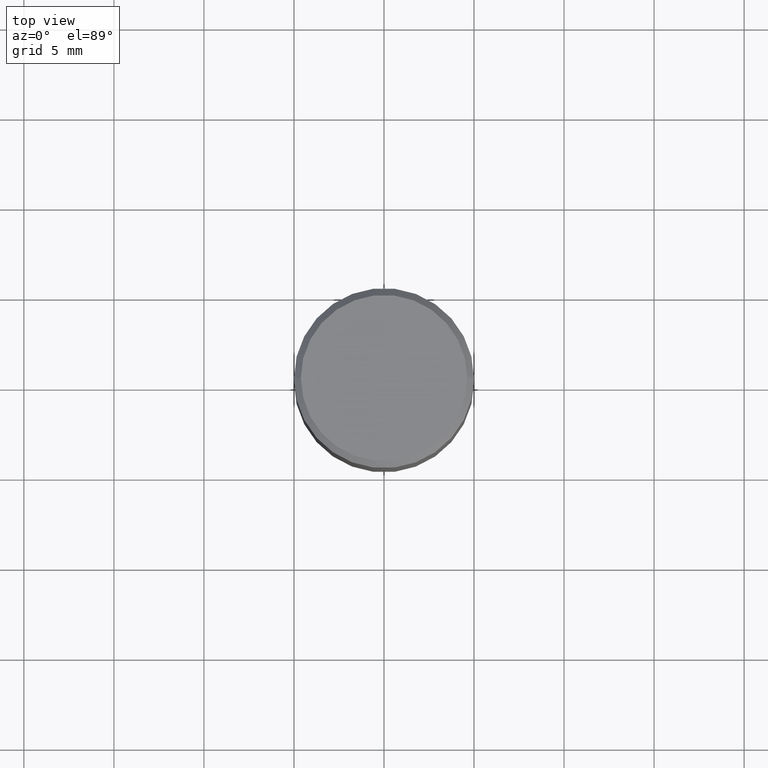
[diagram: clean part render]
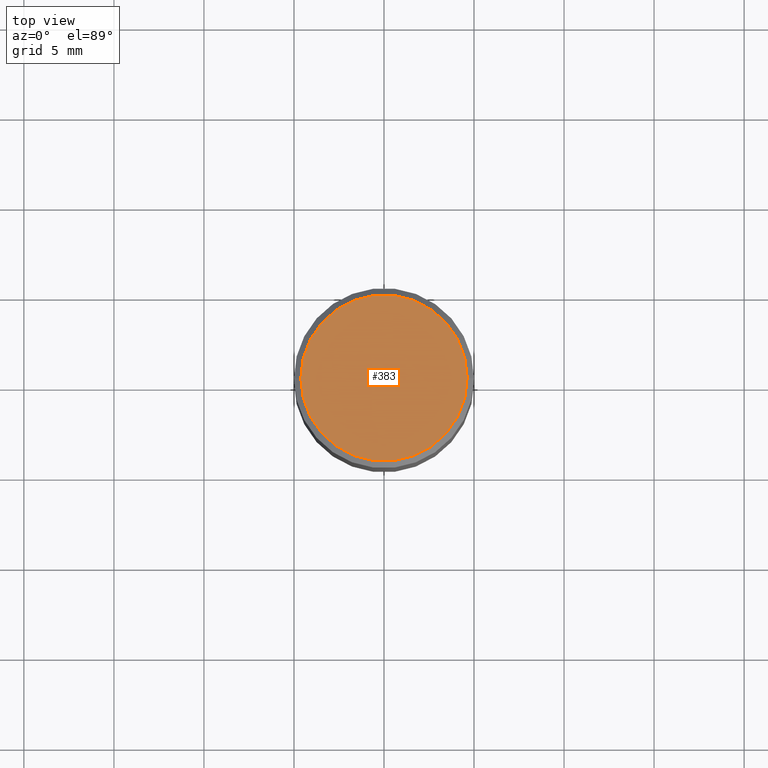
[diagram: same view with one face highlighted and labeled with its STEP entity id]
A machine part, top view. The second image highlights one B-rep face of the part: STEP entity #383.
In plain terms, the highlighted planar face has unit normal (0, -0, -1).
Its self-contained STEP definition (entity closure, byte-faithful):
#70 = CARTESIAN_POINT ( 'NONE',  ( -0.1818500000000000116, 1.296037872978570989E-15, -6.472253288878428014E-18 ) ) ;
#99 = CARTESIAN_POINT ( 'NONE',  ( 0.1818500000000000116, -1.325221405919363357E-15, -6.472253288860382051E-18 ) ) ;
#100 = CARTESIAN_POINT ( 'NONE',  ( 1.582769352365941312E-46, -2.259775157835388046E-32, -6.472253288869456262E-18 ) ) ;
#106 = CIRCLE ( 'NONE', #370, 0.1818500000000000116 ) ;
#135 = FACE_OUTER_BOUND ( 'NONE', #406, .T. ) ;
#168 = AXIS2_PLACEMENT_3D ( 'NONE', #358, #444, #249 ) ;
#197 = ORIENTED_EDGE ( 'NONE', *, *, #254, .T. ) ;
#215 = PLANE ( 'NONE',  #168 ) ;
#217 = CARTESIAN_POINT ( 'NONE',  ( 1.582769352365941312E-46, -2.259775157835388046E-32, -6.472253288869456262E-18 ) ) ;
#226 = AXIS2_PLACEMENT_3D ( 'NONE', #100, #442, #274 ) ;
#249 = DIRECTION ( 'NONE',  ( -1.000000000000000000, 6.982962677686265922E-15, -4.876176775795935793E-29 ) ) ;
#254 = EDGE_CURVE ( 'NONE', #411, #324, #363, .T. ) ;
#266 = EDGE_CURVE ( 'NONE', #324, #411, #106, .T. ) ;
#274 = DIRECTION ( 'NONE',  ( 1.000000000000000000, -6.982962677686266711E-15, 4.876336753188190607E-29 ) ) ;
#280 = DIRECTION ( 'NONE',  ( -2.445468806185136597E-29, 3.491481338843145583E-15, 1.000000000000000000 ) ) ;
#324 = VERTEX_POINT ( 'NONE', #99 ) ;
#358 = CARTESIAN_POINT ( 'NONE',  ( 1.269851762937247450E-15, 0.1818500000000000116, -6.381620081130607218E-16 ) ) ;
#363 = CIRCLE ( 'NONE', #226, 0.1818500000000000116 ) ;
#370 = AXIS2_PLACEMENT_3D ( 'NONE', #217, #280, #385 ) ;
#383 = ADVANCED_FACE ( 'NONE', ( #135 ), #215, .F. ) ;
#385 = DIRECTION ( 'NONE',  ( 1.000000000000000000, -6.982962677686266711E-15, 4.876336753188190607E-29 ) ) ;
#406 = EDGE_LOOP ( 'NONE', ( #197, #448 ) ) ;
#411 = VERTEX_POINT ( 'NONE', #70 ) ;
#442 = DIRECTION ( 'NONE',  ( -2.445468806185136597E-29, 3.491481338843145583E-15, 1.000000000000000000 ) ) ;
#444 = DIRECTION ( 'NONE',  ( 2.438088387897960049E-29, -3.491481338843145188E-15, -1.000000000000000000 ) ) ;
#448 = ORIENTED_EDGE ( 'NONE', *, *, #266, .T. ) ;